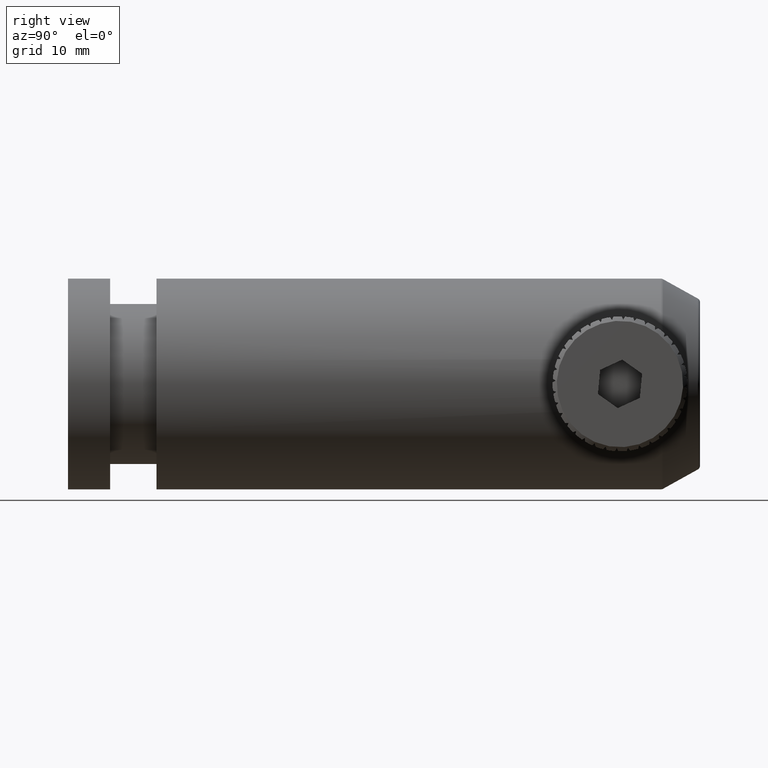
[diagram: clean part render]
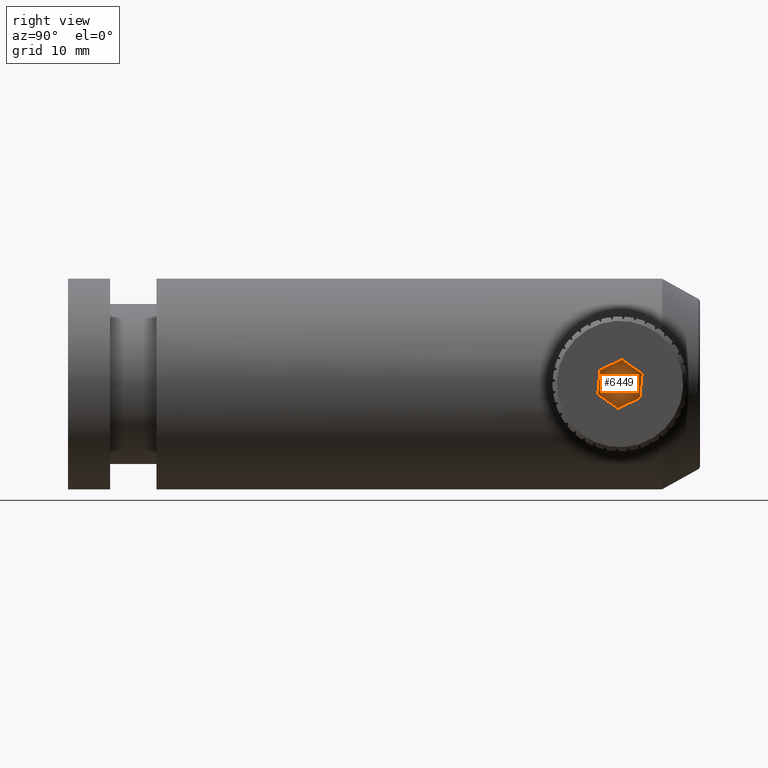
[diagram: same view with one face highlighted and labeled with its STEP entity id]
A machine part, right view. The second image highlights one B-rep face of the part: STEP entity #6449.
In plain terms, the highlighted planar face has unit normal (1, 0, -0).
Its self-contained STEP definition (entity closure, byte-faithful):
#177 = VECTOR ( 'NONE', #3216, 1000.000000000000114 ) ;
#403 = CARTESIAN_POINT ( 'NONE',  ( 15.13128916436950355, 51.33031268923695478, 1.668005618766499998 ) ) ;
#439 = CARTESIAN_POINT ( 'NONE',  ( 15.13128916436950355, 56.30896080547375249, 1.206418211343246449 ) ) ;
#801 = EDGE_CURVE ( 'NONE', #8746, #4021, #8642, .T. ) ;
#1050 = DIRECTION ( 'NONE',  ( 8.126003595357596861E-17, 0.9084858897752480233, 0.4179155274445735535 ) ) ;
#1554 = LINE ( 'NONE', #8029, #7960 ) ;
#1578 = EDGE_CURVE ( 'NONE', #2971, #6949, #3830, .T. ) ;
#2382 = ORIENTED_EDGE ( 'NONE', *, *, #801, .T. ) ;
#2709 = DIRECTION ( 'NONE',  ( 1.000000000000000000, 1.317510786072415822E-17, -2.220711766511247388E-16 ) ) ;
#2957 = CARTESIAN_POINT ( 'NONE',  ( 15.13128916436950355, 51.06381507530660002, -1.206418211343243563 ) ) ;
#2971 = VERTEX_POINT ( 'NONE', #7611 ) ;
#2989 = LINE ( 'NONE', #7893, #6779 ) ;
#3006 = CARTESIAN_POINT ( 'NONE',  ( 15.13128916436950355, 53.41989032645982149, -2.874423830109739786 ) ) ;
#3136 = DIRECTION ( 'NONE',  ( -1.395582776585113026E-16, 0.8161684082905976689, -0.5778140958027870866 ) ) ;
#3216 = DIRECTION ( 'NONE',  ( -2.208183136120873328E-16, -0.09231748148465016013, -0.9957296232473609177 ) ) ;
#3257 = DIRECTION ( 'NONE',  ( 1.395582776585113026E-16, -0.8161684082905975579, 0.5778140958027871976 ) ) ;
#3830 = LINE ( 'NONE', #6656, #5865 ) ;
#3925 = CARTESIAN_POINT ( 'NONE',  ( 15.13128916436950355, 51.06381507530660002, -1.206418211343243563 ) ) ;
#4021 = VERTEX_POINT ( 'NONE', #3006 ) ;
#4098 = ORIENTED_EDGE ( 'NONE', *, *, #6553, .T. ) ;
#4167 = ORIENTED_EDGE ( 'NONE', *, *, #5207, .T. ) ;
#4607 = LINE ( 'NONE', #403, #177 ) ;
#4986 = DIRECTION ( 'NONE',  ( -2.428612866367530240E-17, 0.9987437986324323447, -0.05010813001160040886 ) ) ;
#5207 = EDGE_CURVE ( 'NONE', #6949, #5467, #6731, .T. ) ;
#5467 = VERTEX_POINT ( 'NONE', #7386 ) ;
#5508 = CARTESIAN_POINT ( 'NONE',  ( 15.13128916436950355, 51.33031268923695478, 1.668005618766499998 ) ) ;
#5573 = FACE_OUTER_BOUND ( 'NONE', #6411, .T. ) ;
#5620 = PLANE ( 'NONE',  #8397 ) ;
#5745 = ORIENTED_EDGE ( 'NONE', *, *, #6597, .T. ) ;
#5796 = VECTOR ( 'NONE', #3136, 999.9999999999998863 ) ;
#5865 = VECTOR ( 'NONE', #8828, 1000.000000000000000 ) ;
#5934 = VERTEX_POINT ( 'NONE', #5508 ) ;
#6411 = EDGE_LOOP ( 'NONE', ( #4167, #5745, #8112, #2382, #4098, #7636 ) ) ;
#6449 = ADVANCED_FACE ( 'NONE', ( #5573 ), #5620, .T. ) ;
#6553 = EDGE_CURVE ( 'NONE', #4021, #2971, #2989, .T. ) ;
#6597 = EDGE_CURVE ( 'NONE', #5467, #5934, #1554, .T. ) ;
#6656 = CARTESIAN_POINT ( 'NONE',  ( 15.13128916436950355, 56.04246319154339773, -1.668005618766496223 ) ) ;
#6731 = LINE ( 'NONE', #439, #8166 ) ;
#6779 = VECTOR ( 'NONE', #1050, 999.9999999999998863 ) ;
#6949 = VERTEX_POINT ( 'NONE', #8017 ) ;
#7386 = CARTESIAN_POINT ( 'NONE',  ( 15.13128916436950355, 53.95288555432053101, 2.874423830109743783 ) ) ;
#7611 = CARTESIAN_POINT ( 'NONE',  ( 15.13128916436950355, 56.04246319154339773, -1.668005618766496223 ) ) ;
#7636 = ORIENTED_EDGE ( 'NONE', *, *, #1578, .T. ) ;
#7654 = EDGE_CURVE ( 'NONE', #5934, #8746, #4607, .T. ) ;
#7893 = CARTESIAN_POINT ( 'NONE',  ( 15.13128916436950355, 53.41989032645982149, -2.874423830109739786 ) ) ;
#7960 = VECTOR ( 'NONE', #8633, 1000.000000000000227 ) ;
#8017 = CARTESIAN_POINT ( 'NONE',  ( 15.13128916436950355, 56.30896080547375249, 1.206418211343246449 ) ) ;
#8029 = CARTESIAN_POINT ( 'NONE',  ( 15.13128916436950355, 53.95288555432053101, 2.874423830109743783 ) ) ;
#8112 = ORIENTED_EDGE ( 'NONE', *, *, #7654, .T. ) ;
#8166 = VECTOR ( 'NONE', #3257, 1000.000000000000000 ) ;
#8397 = AXIS2_PLACEMENT_3D ( 'NONE', #9140, #2709, #4986 ) ;
#8633 = DIRECTION ( 'NONE',  ( -8.126003595357593163E-17, -0.9084858897752479123, -0.4179155274445734425 ) ) ;
#8642 = LINE ( 'NONE', #2957, #5796 ) ;
#8746 = VERTEX_POINT ( 'NONE', #3925 ) ;
#8828 = DIRECTION ( 'NONE',  ( 2.208183136120873328E-16, 0.09231748148465018788, 0.9957296232473609177 ) ) ;
#9140 = CARTESIAN_POINT ( 'NONE',  ( 15.13128916436950355, 53.68638794039017625, 1.543903893619356736E-15 ) ) ;